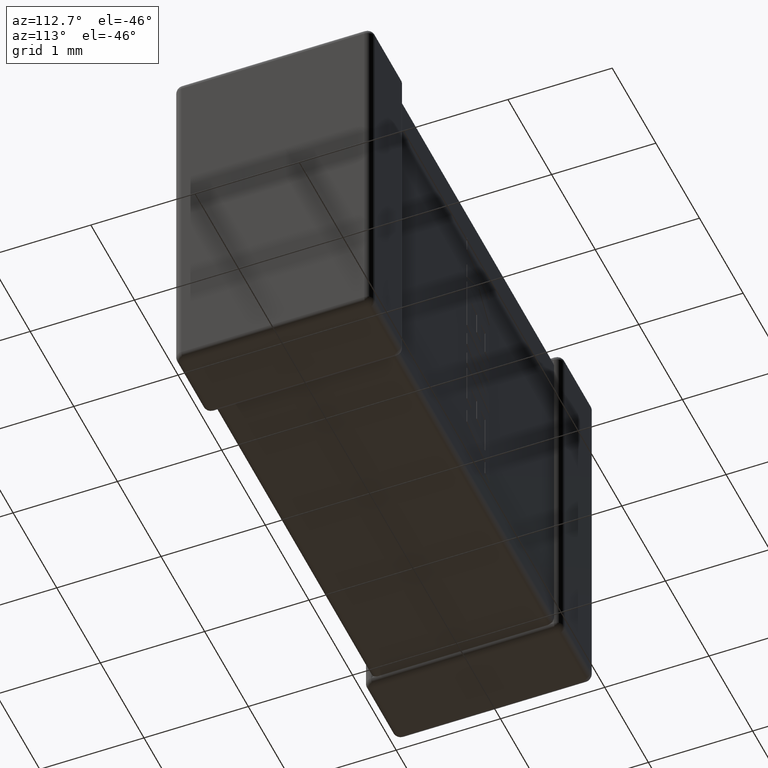
[diagram: clean part render]
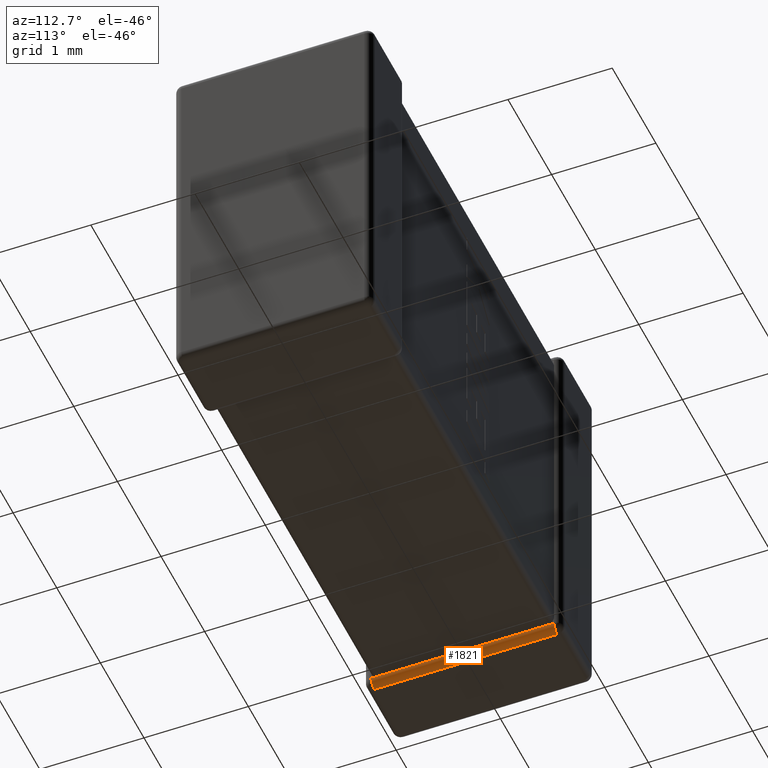
[diagram: same view with one face highlighted and labeled with its STEP entity id]
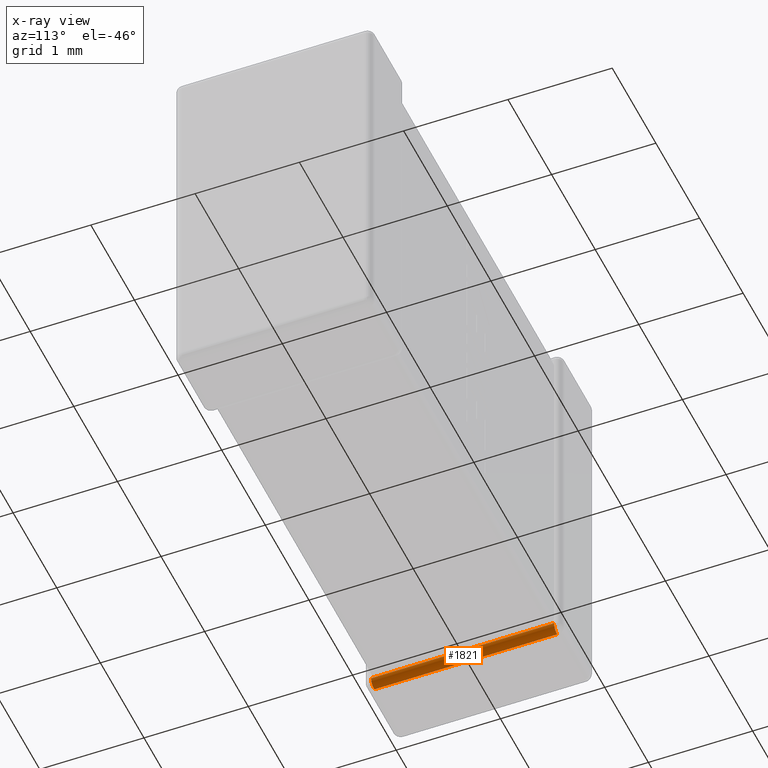
[diagram: x-ray of the same camera — body ghosted, the highlighted face saturated]
A machine part, auxiliary view. The second image highlights one B-rep face of the part: STEP entity #1821.
The next image is the same camera in x-ray: the body ghosted, the highlighted face saturated — about 0% of this face is hidden behind the body in this view.
In plain terms, the highlighted cylindrical surface (edge-blend (fillet) strip) has radius 0.0728 mm, axis along (0, -1, 0).
Its self-contained STEP definition (entity closure, byte-faithful):
#350 = DIRECTION ( 'NONE',  ( -1.000000000000000000, -2.978577396938197768E-15, 0.000000000000000000 ) ) ;
#395 = CIRCLE ( 'NONE', #534, 0.07280000000000003135 ) ;
#509 = DIRECTION ( 'NONE',  ( 1.000000000000000000, 2.978577396938197768E-15, 0.000000000000000000 ) ) ;
#534 = AXIS2_PLACEMENT_3D ( 'NONE', #2276, #1540, #350 ) ;
#540 = CARTESIAN_POINT ( 'NONE',  ( 0.6772000000000053532, -1.317365211117824838E-14, -3.427200000000000024 ) ) ;
#603 = EDGE_LOOP ( 'NONE', ( #1011, #3750, #4647, #4710, #718, #3162 ) ) ;
#718 = ORIENTED_EDGE ( 'NONE', *, *, #2076, .F. ) ;
#761 = EDGE_CURVE ( 'NONE', #1552, #4535, #3312, .T. ) ;
#832 = CARTESIAN_POINT ( 'NONE',  ( 0.7500000000000054401, -1.295681167668114749E-14, -3.427200000000000024 ) ) ;
#910 = VECTOR ( 'NONE', #3082, 1000.000000000000000 ) ;
#980 = EDGE_CURVE ( 'NONE', #2248, #1355, #2301, .T. ) ;
#993 = CARTESIAN_POINT ( 'NONE',  ( 0.7499999999999996669, 0.000000000000000000, -3.427200000000000024 ) ) ;
#1008 = CARTESIAN_POINT ( 'NONE',  ( 0.7499999999999996669, 1.754399999999999959, -3.427200000000000024 ) ) ;
#1011 = ORIENTED_EDGE ( 'NONE', *, *, #2753, .T. ) ;
#1141 = VECTOR ( 'NONE', #4650, 1000.000000000000000 ) ;
#1197 = DIRECTION ( 'NONE',  ( 2.978577396938198557E-15, -1.000000000000000000, 0.000000000000000000 ) ) ;
#1284 = FACE_OUTER_BOUND ( 'NONE', #603, .T. ) ;
#1292 = CARTESIAN_POINT ( 'NONE',  ( 0.6772000000000053532, -1.317365211117824838E-14, -3.500000000000000000 ) ) ;
#1352 = AXIS2_PLACEMENT_3D ( 'NONE', #540, #2701, #2021 ) ;
#1355 = VERTEX_POINT ( 'NONE', #2814 ) ;
#1359 = CIRCLE ( 'NONE', #1507, 0.07280000000000003135 ) ;
#1507 = AXIS2_PLACEMENT_3D ( 'NONE', #2357, #3836, #509 ) ;
#1540 = DIRECTION ( 'NONE',  ( 2.978577396938198162E-15, -1.000000000000000000, -0.000000000000000000 ) ) ;
#1552 = VERTEX_POINT ( 'NONE', #3517 ) ;
#1821 = ADVANCED_FACE ( 'NONE', ( #1284 ), #3772, .T. ) ;
#1870 = VERTEX_POINT ( 'NONE', #2460 ) ;
#1920 = VECTOR ( 'NONE', #1197, 1000.000000000000000 ) ;
#2021 = DIRECTION ( 'NONE',  ( 1.000000000000000000, 2.978577396938197768E-15, 0.000000000000000000 ) ) ;
#2065 = CARTESIAN_POINT ( 'NONE',  ( 0.7500000000000000000, 1.827199999999999935, -3.427200000000000024 ) ) ;
#2076 = EDGE_CURVE ( 'NONE', #1355, #1870, #1359, .T. ) ;
#2248 = VERTEX_POINT ( 'NONE', #4709 ) ;
#2276 = CARTESIAN_POINT ( 'NONE',  ( 0.6772000000000000242, 1.827199999999999935, -3.427200000000000024 ) ) ;
#2301 = LINE ( 'NONE', #1292, #1920 ) ;
#2303 = VERTEX_POINT ( 'NONE', #2065 ) ;
#2357 = CARTESIAN_POINT ( 'NONE',  ( 0.6772000000000051312, 0.07280000000000000360, -3.427200000000000024 ) ) ;
#2418 = CARTESIAN_POINT ( 'NONE',  ( 0.7500000000000054401, -1.295681167668114749E-14, -3.427200000000000024 ) ) ;
#2460 = CARTESIAN_POINT ( 'NONE',  ( 0.7500000000000000000, 0.07279999999999960114, -3.427200000000000024 ) ) ;
#2678 = LINE ( 'NONE', #832, #910 ) ;
#2701 = DIRECTION ( 'NONE',  ( 2.978577396938198162E-15, -1.000000000000000000, 0.000000000000000000 ) ) ;
#2753 = EDGE_CURVE ( 'NONE', #2248, #2303, #395, .T. ) ;
#2814 = CARTESIAN_POINT ( 'NONE',  ( 0.6772000000000051312, 0.07280000000000000360, -3.500000000000000000 ) ) ;
#3082 = DIRECTION ( 'NONE',  ( 2.978577396938198557E-15, -1.000000000000000000, 0.000000000000000000 ) ) ;
#3162 = ORIENTED_EDGE ( 'NONE', *, *, #980, .F. ) ;
#3312 = LINE ( 'NONE', #993, #4656 ) ;
#3517 = CARTESIAN_POINT ( 'NONE',  ( 0.7499999999999996669, 0.1455999999999996186, -3.427200000000000024 ) ) ;
#3750 = ORIENTED_EDGE ( 'NONE', *, *, #4673, .T. ) ;
#3772 = CYLINDRICAL_SURFACE ( 'NONE', #1352, 0.07280000000000003135 ) ;
#3836 = DIRECTION ( 'NONE',  ( 2.978577396938198162E-15, -1.000000000000000000, 0.000000000000000000 ) ) ;
#4527 = EDGE_CURVE ( 'NONE', #1552, #1870, #4731, .T. ) ;
#4535 = VERTEX_POINT ( 'NONE', #1008 ) ;
#4647 = ORIENTED_EDGE ( 'NONE', *, *, #761, .F. ) ;
#4650 = DIRECTION ( 'NONE',  ( 2.978577396938198557E-15, -1.000000000000000000, 0.000000000000000000 ) ) ;
#4656 = VECTOR ( 'NONE', #4785, 1000.000000000000000 ) ;
#4673 = EDGE_CURVE ( 'NONE', #2303, #4535, #2678, .T. ) ;
#4709 = CARTESIAN_POINT ( 'NONE',  ( 0.6772000000000000242, 1.827199999999999935, -3.500000000000000000 ) ) ;
#4710 = ORIENTED_EDGE ( 'NONE', *, *, #4527, .T. ) ;
#4731 = LINE ( 'NONE', #2418, #1141 ) ;
#4785 = DIRECTION ( 'NONE',  ( -0.000000000000000000, 1.000000000000000000, -0.000000000000000000 ) ) ;